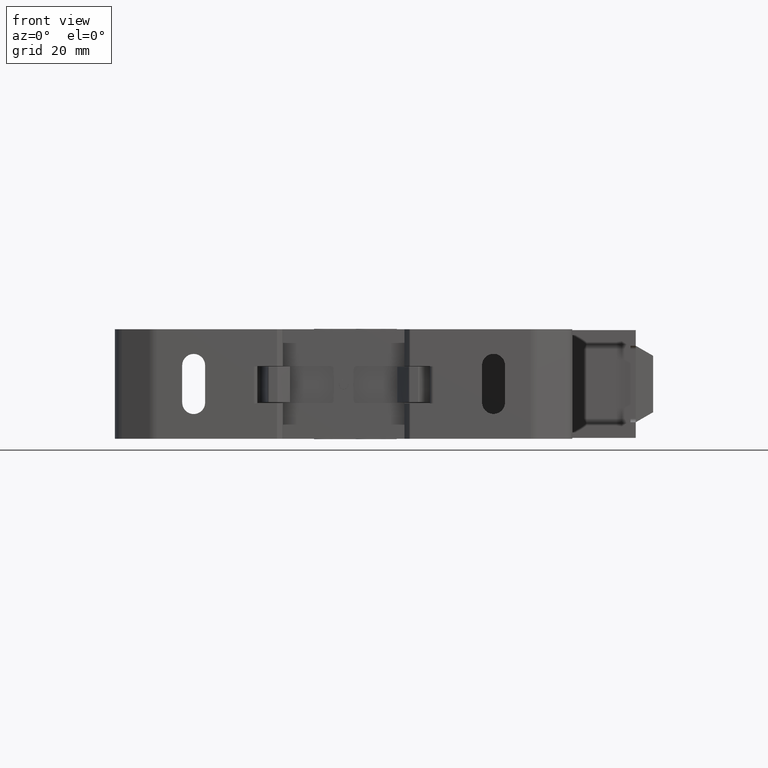
[diagram: clean part render]
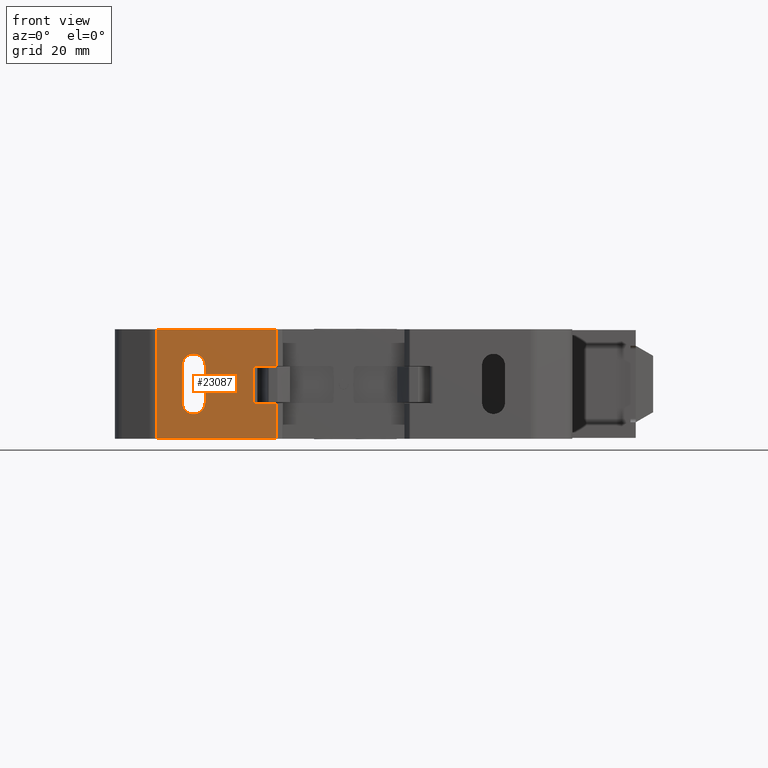
[diagram: same view with one face highlighted and labeled with its STEP entity id]
A machine part, front view. The second image highlights one B-rep face of the part: STEP entity #23087.
In plain terms, the highlighted planar face has unit normal (-0, -1, -0).
Its self-contained STEP definition (entity closure, byte-faithful):
#1956 = EDGE_CURVE ( 'NONE', #12801, #12814, #7708, .T. ) ;
#2541 = VECTOR ( 'NONE', #5418, 1000.000000000000000 ) ;
#2583 = VECTOR ( 'NONE', #5589, 1000.000000000000000 ) ;
#2587 = AXIS2_PLACEMENT_3D ( 'NONE', #5609, #5605, #5627 ) ;
#2596 = CIRCLE ( 'NONE', #2639, 3.299999999999998900 ) ;
#2607 = CIRCLE ( 'NONE', #2587, 3.299999999999998900 ) ;
#2612 = VECTOR ( 'NONE', #5646, 1000.000000000000000 ) ;
#2621 = VECTOR ( 'NONE', #5524, 1000.000000000000000 ) ;
#2639 = AXIS2_PLACEMENT_3D ( 'NONE', #5574, #5553, #5548 ) ;
#2705 = VECTOR ( 'NONE', #5705, 1000.000000000000000 ) ;
#2789 = VECTOR ( 'NONE', #6084, 1000.000000000000000 ) ;
#2790 = VECTOR ( 'NONE', #5993, 1000.000000000000000 ) ;
#4417 = VERTEX_POINT ( 'NONE', #15951 ) ;
#4449 = VERTEX_POINT ( 'NONE', #16019 ) ;
#4456 = VERTEX_POINT ( 'NONE', #16027 ) ;
#4466 = VERTEX_POINT ( 'NONE', #16085 ) ;
#4468 = VERTEX_POINT ( 'NONE', #16088 ) ;
#4489 = VERTEX_POINT ( 'NONE', #16102 ) ;
#4490 = VERTEX_POINT ( 'NONE', #16032 ) ;
#4507 = VERTEX_POINT ( 'NONE', #16074 ) ;
#4527 = VERTEX_POINT ( 'NONE', #16186 ) ;
#4571 = VERTEX_POINT ( 'NONE', #16197 ) ;
#4642 = VERTEX_POINT ( 'NONE', #14881 ) ;
#5418 = DIRECTION ( 'NONE',  ( -0.0000000000000000000, -3.491483361109380100E-015, 1.000000000000000000 ) ) ;
#5440 = LINE ( 'NONE', #5451, #2541 ) ;
#5451 = CARTESIAN_POINT ( 'NONE',  ( 142.0404841218789600, -25.30000000000000100, 2.749999999996690200 ) ) ;
#5503 = CARTESIAN_POINT ( 'NONE',  ( 142.0404841206863600, -25.30000000000000100, 2.749999999996690200 ) ) ;
#5524 = DIRECTION ( 'NONE',  ( -0.0000000000000000000, -3.491483361109380100E-015, 1.000000000000000000 ) ) ;
#5536 = LINE ( 'NONE', #5503, #2621 ) ;
#5548 = DIRECTION ( 'NONE',  ( 0.0000000000000000000, 3.154042683594195600E-015, -1.000000000000000000 ) ) ;
#5553 = DIRECTION ( 'NONE',  ( 4.876179600077876300E-029, 1.000000000000000000, 3.491483361109380100E-015 ) ) ;
#5567 = CARTESIAN_POINT ( 'NONE',  ( 121.4500042871553800, -25.30000000000007900, 25.00000000000017400 ) ) ;
#5574 = CARTESIAN_POINT ( 'NONE',  ( 118.1500043304161900, -25.30000000000005800, 18.84999999999724800 ) ) ;
#5577 = LINE ( 'NONE', #5567, #2583 ) ;
#5589 = DIRECTION ( 'NONE',  ( 0.0000000000000000000, 3.491483361109380100E-015, -1.000000000000000000 ) ) ;
#5605 = DIRECTION ( 'NONE',  ( 4.876179600077876300E-029, 1.000000000000000000, 3.491483361109380100E-015 ) ) ;
#5609 = CARTESIAN_POINT ( 'NONE',  ( 118.1500042871553800, -25.30000000000002600, 8.150000000000138900 ) ) ;
#5627 = DIRECTION ( 'NONE',  ( 0.0000000000000000000, 3.154042683594195600E-015, -1.000000000000000000 ) ) ;
#5646 = DIRECTION ( 'NONE',  ( -0.0000000000000000000, -3.491483361109380100E-015, 1.000000000000000000 ) ) ;
#5649 = CARTESIAN_POINT ( 'NONE',  ( 135.4231637305352100, -25.30000000000000100, 2.749999999996690200 ) ) ;
#5679 = LINE ( 'NONE', #5649, #2612 ) ;
#5704 = LINE ( 'NONE', #5718, #2705 ) ;
#5705 = DIRECTION ( 'NONE',  ( 0.0000000000000000000, -3.491483361109380100E-015, 1.000000000000000000 ) ) ;
#5718 = CARTESIAN_POINT ( 'NONE',  ( 114.8500042871554000, -25.30000000000007900, 25.00000000000017400 ) ) ;
#5982 = LINE ( 'NONE', #5988, #2790 ) ;
#5988 = CARTESIAN_POINT ( 'NONE',  ( 139.1000041032632200, -25.30000000000005400, 18.55349402857055100 ) ) ;
#5993 = DIRECTION ( 'NONE',  ( 1.000000000000000000, -4.876179600077876300E-029, -1.702509993945289600E-043 ) ) ;
#6069 = CARTESIAN_POINT ( 'NONE',  ( 139.1000041032632200, -25.30000000000009300, 29.24999999999724300 ) ) ;
#6076 = LINE ( 'NONE', #6069, #2789 ) ;
#6084 = DIRECTION ( 'NONE',  ( -1.000000000000000000, 4.876179600077876300E-029, 1.702509993945289600E-043 ) ) ;
#7679 = AXIS2_PLACEMENT_3D ( 'NONE', #14120, #14122, #14119 ) ;
#7708 = CIRCLE ( 'NONE', #7679, 3.299999999999998900 ) ;
#9521 = EDGE_LOOP ( 'NONE', ( #9807, #9846, #9944, #9950, #9941, #9875, #9919, #9925 ) ) ;
#9536 = EDGE_LOOP ( 'NONE', ( #9839, #9911, #9855, #9836, #9815 ) ) ;
#9807 = ORIENTED_EDGE ( 'NONE', *, *, #30885, .T. ) ;
#9815 = ORIENTED_EDGE ( 'NONE', *, *, #30736, .T. ) ;
#9836 = ORIENTED_EDGE ( 'NONE', *, *, #30714, .T. ) ;
#9839 = ORIENTED_EDGE ( 'NONE', *, *, #30764, .T. ) ;
#9846 = ORIENTED_EDGE ( 'NONE', *, *, #12022, .F. ) ;
#9855 = ORIENTED_EDGE ( 'NONE', *, *, #1956, .T. ) ;
#9875 = ORIENTED_EDGE ( 'NONE', *, *, #30743, .T. ) ;
#9911 = ORIENTED_EDGE ( 'NONE', *, *, #30719, .T. ) ;
#9919 = ORIENTED_EDGE ( 'NONE', *, *, #30862, .T. ) ;
#9925 = ORIENTED_EDGE ( 'NONE', *, *, #30706, .T. ) ;
#9941 = ORIENTED_EDGE ( 'NONE', *, *, #12077, .T. ) ;
#9944 = ORIENTED_EDGE ( 'NONE', *, *, #11684, .F. ) ;
#9950 = ORIENTED_EDGE ( 'NONE', *, *, #30672, .T. ) ;
#11684 = EDGE_CURVE ( 'NONE', #4527, #4642, #26094, .T. ) ;
#12022 = EDGE_CURVE ( 'NONE', #4642, #4571, #26218, .T. ) ;
#12077 = EDGE_CURVE ( 'NONE', #4466, #4417, #26200, .T. ) ;
#12801 = VERTEX_POINT ( 'NONE', #26596 ) ;
#12814 = VERTEX_POINT ( 'NONE', #26583 ) ;
#14119 = DIRECTION ( 'NONE',  ( 0.0000000000000000000, 3.154042683594195600E-015, -1.000000000000000000 ) ) ;
#14120 = CARTESIAN_POINT ( 'NONE',  ( 118.1500043304161900, -25.30000000000005800, 18.84999999999724800 ) ) ;
#14122 = DIRECTION ( 'NONE',  ( 4.876179600077876300E-029, 1.000000000000000000, 3.491483361109380100E-015 ) ) ;
#14881 = CARTESIAN_POINT ( 'NONE',  ( 107.4653396857041500, -25.29999976158210700, -2.249999999999863200 ) ) ;
#15951 = CARTESIAN_POINT ( 'NONE',  ( 135.4231637305352600, -25.30000000000001800, 7.946505971427219700 ) ) ;
#16019 = CARTESIAN_POINT ( 'NONE',  ( 114.8500042871553900, -25.30000000000001800, 8.150000000000138900 ) ) ;
#16027 = CARTESIAN_POINT ( 'NONE',  ( 135.4231637305352900, -25.30000000000005400, 18.55349402857055100 ) ) ;
#16032 = CARTESIAN_POINT ( 'NONE',  ( 121.4500042871553800, -25.30000000000001800, 8.150000000000140700 ) ) ;
#16074 = CARTESIAN_POINT ( 'NONE',  ( 142.0404841206863600, -25.30000000000009300, 29.24999999999722900 ) ) ;
#16085 = CARTESIAN_POINT ( 'NONE',  ( 142.0404841218790200, -25.30000000000001800, 7.946505971427216200 ) ) ;
#16088 = CARTESIAN_POINT ( 'NONE',  ( 142.0404841206863600, -25.30000000000005400, 18.55349402857055100 ) ) ;
#16102 = CARTESIAN_POINT ( 'NONE',  ( 114.8500043304162000, -25.30000000000000400, 18.84999999999724500 ) ) ;
#16186 = CARTESIAN_POINT ( 'NONE',  ( 142.0404841218789900, -25.29999999999998300, -2.249999999999859700 ) ) ;
#16197 = CARTESIAN_POINT ( 'NONE',  ( 107.4653396857041500, -25.29999976158216100, 29.24999999999738900 ) ) ;
#21226 = VECTOR ( 'NONE', #26096, 1000.000000000000000 ) ;
#21286 = VECTOR ( 'NONE', #26253, 1000.000000000000000 ) ;
#21295 = VECTOR ( 'NONE', #26225, 1000.000000000000000 ) ;
#21580 = AXIS2_PLACEMENT_3D ( 'NONE', #28985, #28996, #28986 ) ;
#23087 = ADVANCED_FACE ( 'NONE', ( #28961, #28983 ), #28984, .T. ) ;
#26078 = CARTESIAN_POINT ( 'NONE',  ( 190.6048895583086800, -25.29999999999998300, -2.249999999999859700 ) ) ;
#26094 = LINE ( 'NONE', #26078, #21226 ) ;
#26096 = DIRECTION ( 'NONE',  ( -1.000000000000000000, 0.0000000000000000000, -0.0000000000000000000 ) ) ;
#26200 = LINE ( 'NONE', #26254, #21286 ) ;
#26203 = CARTESIAN_POINT ( 'NONE',  ( 107.4653396857041200, -25.29999952316422800, -153.4633163665080000 ) ) ;
#26218 = LINE ( 'NONE', #26203, #21295 ) ;
#26225 = DIRECTION ( 'NONE',  ( 0.0000000000000000000, 0.0000000000000000000, 1.000000000000000000 ) ) ;
#26253 = DIRECTION ( 'NONE',  ( -1.000000000000000000, 4.876179600077876300E-029, 1.702509993945289600E-043 ) ) ;
#26254 = CARTESIAN_POINT ( 'NONE',  ( 139.1000041032632200, -25.30000000000001800, 7.946505971427212600 ) ) ;
#26583 = CARTESIAN_POINT ( 'NONE',  ( 121.4500042871553800, -25.30000000000005800, 18.84999999999724500 ) ) ;
#26596 = CARTESIAN_POINT ( 'NONE',  ( 118.1500043304161900, -25.30000000000006800, 22.14999999999724900 ) ) ;
#28961 = FACE_BOUND ( 'NONE', #9536, .T. ) ;
#28983 = FACE_OUTER_BOUND ( 'NONE', #9521, .T. ) ;
#28984 = PLANE ( 'NONE',  #21580 ) ;
#28985 = CARTESIAN_POINT ( 'NONE',  ( 139.1000041032632200, -25.30000000000000100, 2.749999999996690200 ) ) ;
#28986 = DIRECTION ( 'NONE',  ( 0.0000000000000000000, 3.491483361109380100E-015, -1.000000000000000000 ) ) ;
#28996 = DIRECTION ( 'NONE',  ( -4.876179600077876300E-029, -1.000000000000000000, -3.491483361109380100E-015 ) ) ;
#30672 = EDGE_CURVE ( 'NONE', #4527, #4466, #5440, .T. ) ;
#30706 = EDGE_CURVE ( 'NONE', #4468, #4507, #5536, .T. ) ;
#30714 = EDGE_CURVE ( 'NONE', #12814, #4490, #5577, .T. ) ;
#30719 = EDGE_CURVE ( 'NONE', #4489, #12801, #2596, .T. ) ;
#30736 = EDGE_CURVE ( 'NONE', #4490, #4449, #2607, .T. ) ;
#30743 = EDGE_CURVE ( 'NONE', #4417, #4456, #5679, .T. ) ;
#30764 = EDGE_CURVE ( 'NONE', #4449, #4489, #5704, .T. ) ;
#30862 = EDGE_CURVE ( 'NONE', #4456, #4468, #5982, .T. ) ;
#30885 = EDGE_CURVE ( 'NONE', #4507, #4571, #6076, .T. ) ;